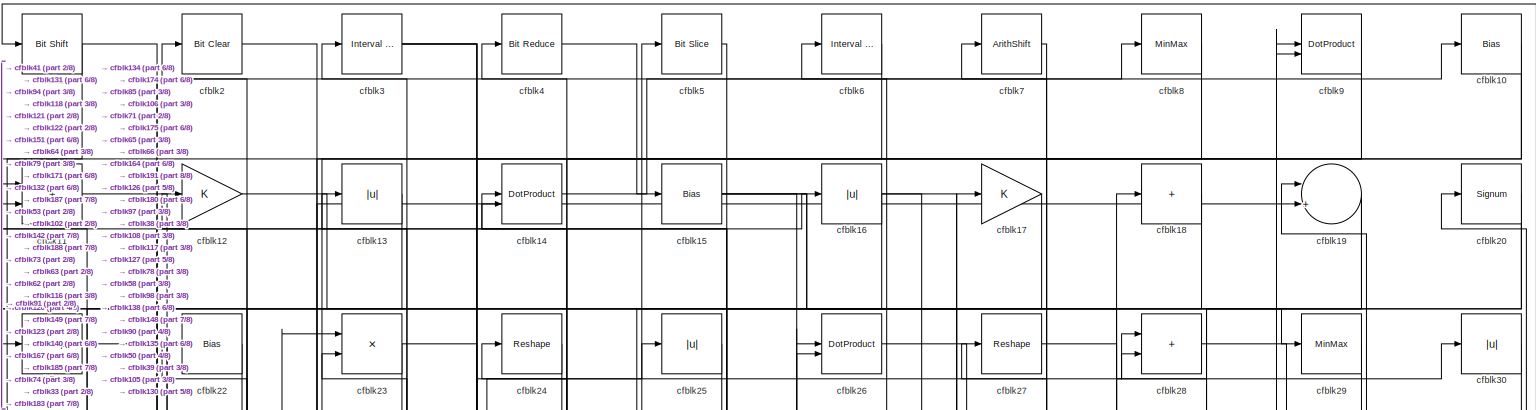
[diagram: root canvas - part 1/8, full width, top band]
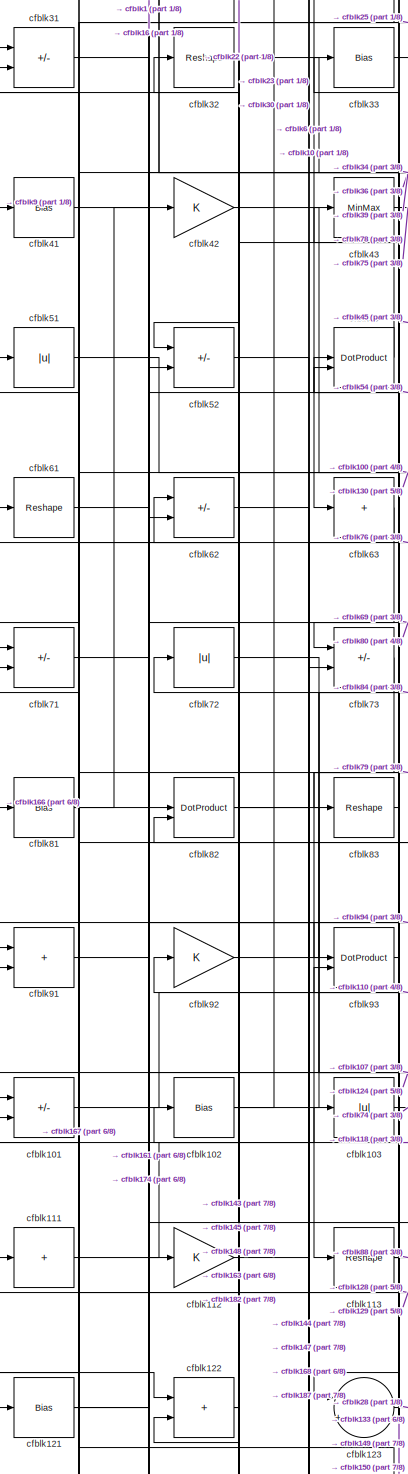
[diagram: root canvas - part 2/8, middle left region]
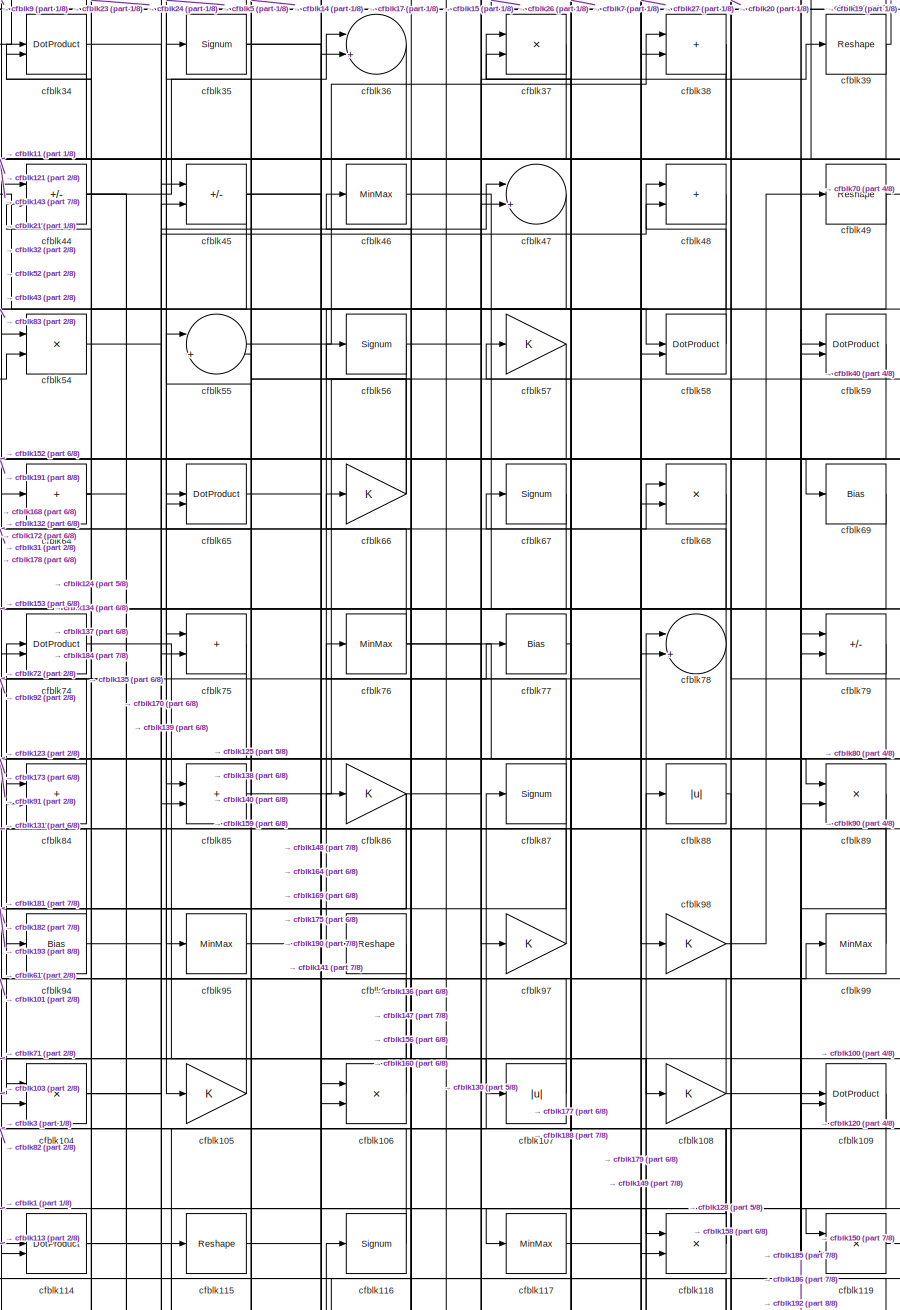
[diagram: root canvas - part 3/8, central region]
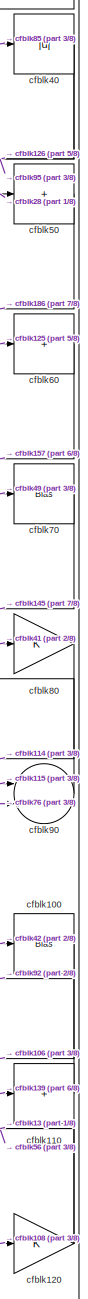
[diagram: root canvas - part 4/8, middle right region]
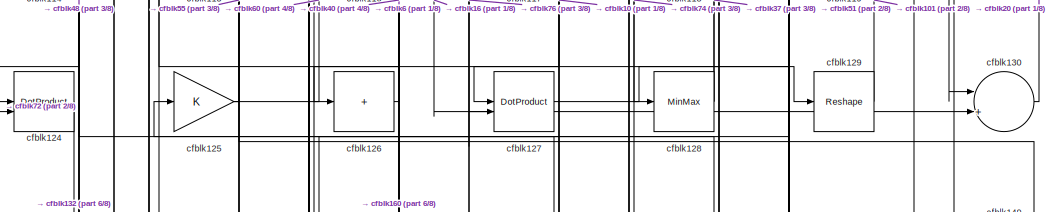
[diagram: root canvas - part 5/8, central region]
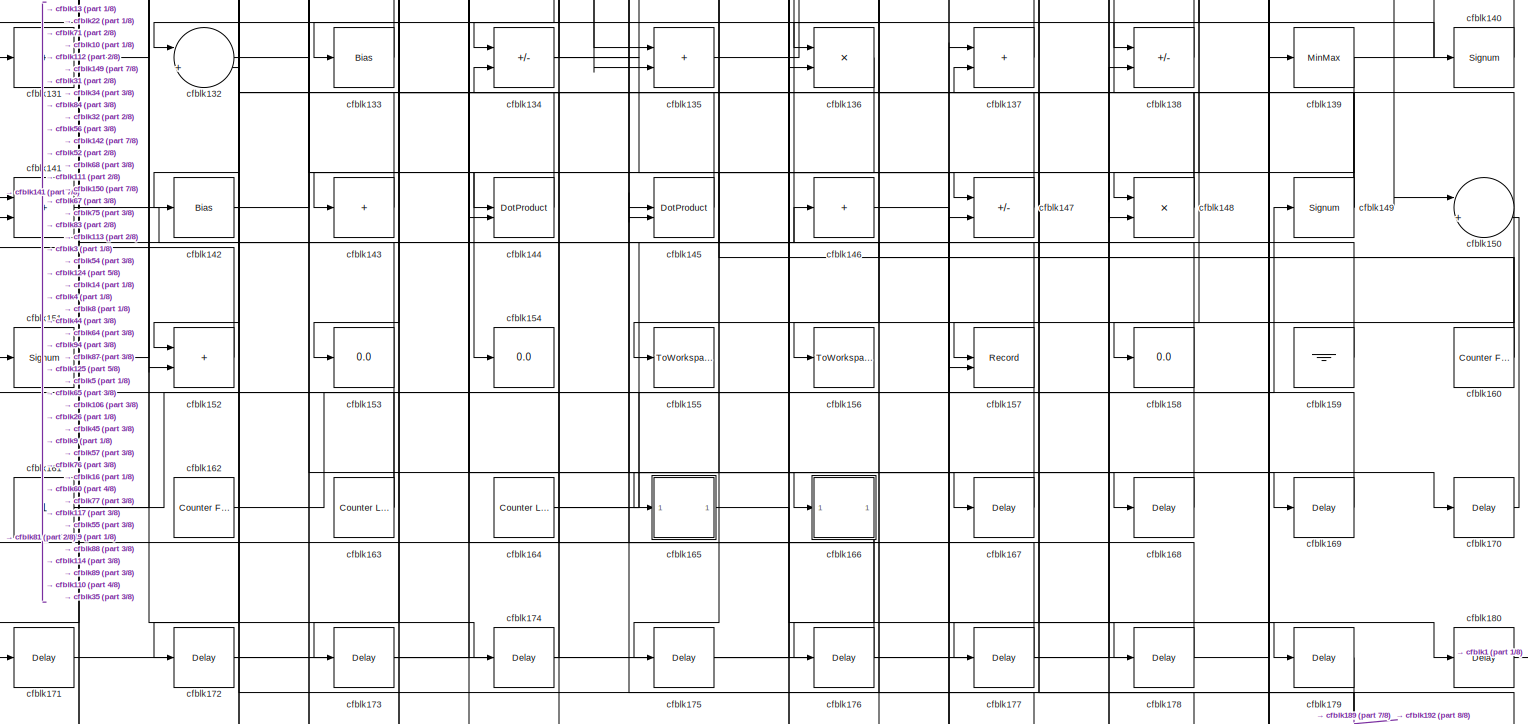
[diagram: root canvas - part 6/8, full width, bottom band]
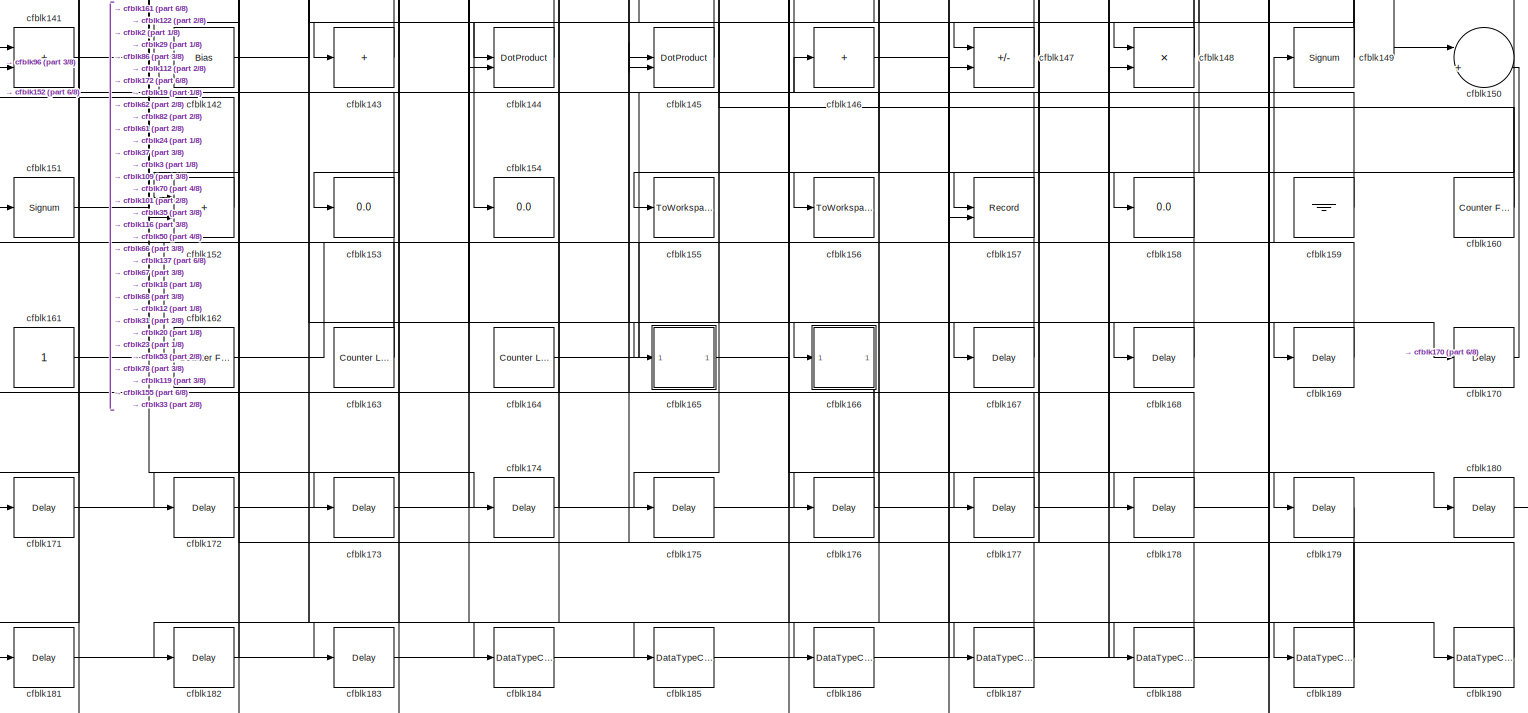
[diagram: root canvas - part 7/8, full width, bottom band]
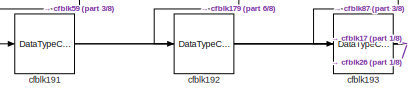
[diagram: root canvas - part 8/8, bottom left region]
MODEL slx_a96918c08062
KIND model
CONFIG AbsTol = auto
CONFIG EnableMultiTasking = off
CONFIG FixedStep = auto
CONFIG MaxStep = auto
CONFIG MinStep = auto
CONFIG RelTol = 1e-3
CONFIG SampleTimeConstraint = Unconstrained
CONFIG SolverName = VariableStepAuto
CONFIG StartTime = 0.0
CONFIG StopTime = 10.0
BLOCK [Reference] cfblk1  REF=hdlsllib/Logic and Bit
Operations/Bit Shift
  SourceBlock = hdlsllib/Logic and Bit\nOperations/Bit Shift
  SourceType = Bit Shift
BLOCK [Bias] cfblk10
  Bias = 0.0
  SaturateOnIntegerOverflow = off
BLOCK [Bias] cfblk100
  Bias = 0.0
  SaturateOnIntegerOverflow = off
BLOCK [Sum] cfblk101
  IconShape = rectangular
  Inputs = +-
BLOCK [Bias] cfblk102
  Bias = 0.0
  SaturateOnIntegerOverflow = off
BLOCK [Abs] cfblk103
  SaturateOnIntegerOverflow = off
BLOCK [Product] cfblk104
  Inputs = */
  RndMeth = Zero
  SaturateOnIntegerOverflow = on
BLOCK [Gain] cfblk105
BLOCK [Product] cfblk106
  Inputs = */
  RndMeth = Zero
  SaturateOnIntegerOverflow = on
BLOCK [Abs] cfblk107
  SaturateOnIntegerOverflow = off
BLOCK [Gain] cfblk108
BLOCK [DotProduct] cfblk109
  OutDataTypeStr = Inherit: Inherit via internal rule
BLOCK [Sum] cfblk11
  IconShape = rectangular
BLOCK [Sum] cfblk110
  IconShape = rectangular
  Inputs = +
BLOCK [Sum] cfblk111
  IconShape = rectangular
  Inputs = +
BLOCK [Gain] cfblk112
BLOCK [Reshape] cfblk113
BLOCK [DotProduct] cfblk114
  OutDataTypeStr = Inherit: Inherit via internal rule
BLOCK [Reshape] cfblk115
BLOCK [Signum] cfblk116
BLOCK [MinMax] cfblk117
BLOCK [Product] cfblk118
  Inputs = */
  RndMeth = Zero
  SaturateOnIntegerOverflow = on
BLOCK [Product] cfblk119
  Inputs = */
  RndMeth = Zero
  SaturateOnIntegerOverflow = on
BLOCK [Gain] cfblk12
BLOCK [Gain] cfblk120
BLOCK [Bias] cfblk121
  Bias = 0.0
  SaturateOnIntegerOverflow = off
BLOCK [Sum] cfblk122
  IconShape = rectangular
BLOCK [Sum] cfblk123
  Inputs = |++
BLOCK [DotProduct] cfblk124
  OutDataTypeStr = Inherit: Inherit via internal rule
BLOCK [Gain] cfblk125
BLOCK [Sum] cfblk126
  IconShape = rectangular
  Inputs = +
BLOCK [DotProduct] cfblk127
  OutDataTypeStr = Inherit: Inherit via internal rule
BLOCK [MinMax] cfblk128
BLOCK [Reshape] cfblk129
BLOCK [Abs] cfblk13
  SaturateOnIntegerOverflow = off
BLOCK [Sum] cfblk130
  Inputs = |++
BLOCK [Sum] cfblk131
  IconShape = rectangular
  Inputs = +
BLOCK [Sum] cfblk132
  Inputs = |++
BLOCK [Bias] cfblk133
  Bias = 0.0
  SaturateOnIntegerOverflow = off
BLOCK [Sum] cfblk134
  IconShape = rectangular
  Inputs = +-
BLOCK [Sum] cfblk135
  IconShape = rectangular
BLOCK [Product] cfblk136
  Inputs = */
  RndMeth = Zero
  SaturateOnIntegerOverflow = on
BLOCK [Sum] cfblk137
  IconShape = rectangular
BLOCK [Sum] cfblk138
  IconShape = rectangular
  Inputs = +-
BLOCK [MinMax] cfblk139
BLOCK [DotProduct] cfblk14
  OutDataTypeStr = Inherit: Inherit via internal rule
BLOCK [Signum] cfblk140
BLOCK [Sum] cfblk141
  IconShape = rectangular
BLOCK [Bias] cfblk142
  Bias = 0.0
  SaturateOnIntegerOverflow = off
BLOCK [Sum] cfblk143
  IconShape = rectangular
  Inputs = +
BLOCK [DotProduct] cfblk144
  OutDataTypeStr = Inherit: Inherit via internal rule
BLOCK [DotProduct] cfblk145
  OutDataTypeStr = Inherit: Inherit via internal rule
BLOCK [Sum] cfblk146
  IconShape = rectangular
  Inputs = +
BLOCK [Sum] cfblk147
  IconShape = rectangular
  Inputs = +-
BLOCK [Product] cfblk148
  Inputs = */
  RndMeth = Zero
  SaturateOnIntegerOverflow = on
BLOCK [Signum] cfblk149
BLOCK [Bias] cfblk15
  Bias = 0.0
  SaturateOnIntegerOverflow = off
BLOCK [Sum] cfblk150
  Inputs = |++
BLOCK [Signum] cfblk151
BLOCK [Sum] cfblk152
  IconShape = rectangular
BLOCK [Display] cfblk153
  Decimation = 1
BLOCK [Display] cfblk154
  Decimation = 1
BLOCK [ToWorkspace] cfblk155
  MaxDataPoints = inf
  SampleTime = -1
  SaveFormat = Timeseries
  VariableName = simout
BLOCK [ToWorkspace] cfblk156
  MaxDataPoints = inf
  SampleTime = -1
  SaveFormat = Timeseries
  VariableName = simout
BLOCK [Record] cfblk157
  CompatibilityTag = XY
  FileSettingsInternal = {"entries":[{"content":{"excelSettings":{"content":{},"type":"Streamout.ExcelSettings"}},"type":"Streamout.FileSettingStorage","uuid":""}],"packageUris":["http:\/\/schema.mathworks.com\/mf0\/streamout_blocks\/R2020a"],"version":"1.0"}
  Layout = [1 1]
  SignalsInternal = {"entries":[{"content":{"signals":[{"content":{"blockPath":[],"dimensions":[1],"domain":"","lineColor":"#a2142f","plots":[1],"port":1,"signalID":5926,"signalName":"XY Graph:1"},"type":"RecordBlkView.Signal","uuid":""},{"content":{"blockPath":[],"dimensions":[1],"domain":"","lineColor":"#139fff","plots":[1],"port":2,"signalID":5929,"signalName":"XY Graph:2"},"type":"RecordBlkView.Signal","uuid":""}...<+146ch>
  VisualizationBindings = {"xyplotplugin":{"info":[{"series":[{"bindingParametersList":[{"parameter":"X-Axis","signalID":5926,"signalName":"XY Graph:1"},{"parameter":"Y-Axis","signalID":5929,"signalName":"XY Graph:2"}],"seriesID":65058}],"subplotID":1}]}}
  st = -1
BLOCK [Display] cfblk158
  Decimation = 1
BLOCK [Ground] cfblk159
BLOCK [Abs] cfblk16
  SaturateOnIntegerOverflow = off
BLOCK [Reference] cfblk160  REF=hdlsllib/Sources/Counter
Free-Running
  SourceBlock = hdlsllib/Sources/Counter\nFree-Running
  SourceType = Counter Free-Running
BLOCK [Constant] cfblk161
  SampleTime = -1
BLOCK [Reference] cfblk162  REF=hdlsllib/Sources/Counter
Free-Running
  SourceBlock = hdlsllib/Sources/Counter\nFree-Running
  SourceType = Counter Free-Running
BLOCK [Reference] cfblk163  REF=hdlsllib/Sources/Counter
Limited
  SourceBlock = hdlsllib/Sources/Counter\nLimited
  SourceType = Counter Limited
BLOCK [Reference] cfblk164  REF=hdlsllib/Sources/Counter
Limited
  SourceBlock = hdlsllib/Sources/Counter\nLimited
  SourceType = Counter Limited
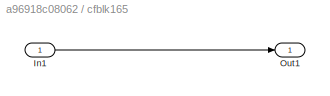
BLOCK [SubSystem] cfblk165
  LibrarySourceBlock = hdlsllib/Ports &\nSubsystems/Subsystem
BLOCK [Inport] cfblk165/In1
BLOCK [Outport] cfblk165/Out1
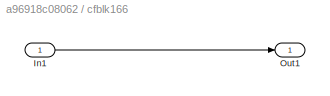
BLOCK [SubSystem] cfblk166
  LibrarySourceBlock = hdlsllib/Ports &\nSubsystems/Subsystem
BLOCK [Inport] cfblk166/In1
BLOCK [Outport] cfblk166/Out1
BLOCK [Delay] cfblk167
  InputPortMap = u0
  SampleTime = 1
BLOCK [Delay] cfblk168
  InputPortMap = u0
  SampleTime = 1
BLOCK [Delay] cfblk169
  InputPortMap = u0
  SampleTime = 1
BLOCK [Gain] cfblk17
BLOCK [Delay] cfblk170
  InputPortMap = u0
  SampleTime = 1
BLOCK [Delay] cfblk171
  InputPortMap = u0
  SampleTime = 1
BLOCK [Delay] cfblk172
  InputPortMap = u0
  SampleTime = 1
BLOCK [Delay] cfblk173
  InputPortMap = u0
  SampleTime = 1
BLOCK [Delay] cfblk174
  InputPortMap = u0
  SampleTime = 1
BLOCK [Delay] cfblk175
  InputPortMap = u0
  SampleTime = 1
BLOCK [Delay] cfblk176
  InputPortMap = u0
  SampleTime = 1
BLOCK [Delay] cfblk177
  InputPortMap = u0
  SampleTime = 1
BLOCK [Delay] cfblk178
  InputPortMap = u0
  SampleTime = 1
BLOCK [Delay] cfblk179
  InputPortMap = u0
  SampleTime = 1
BLOCK [Sum] cfblk18
  IconShape = rectangular
  Inputs = +
BLOCK [Delay] cfblk180
  InputPortMap = u0
  SampleTime = 1
BLOCK [Delay] cfblk181
  InputPortMap = u0
  SampleTime = 1
BLOCK [Delay] cfblk182
  InputPortMap = u0
  SampleTime = 1
BLOCK [Delay] cfblk183
  InputPortMap = u0
  SampleTime = 1
BLOCK [DataTypeConversion] cfblk184
  OutDataTypeStr = uint8
  RndMeth = Floor
  SaturateOnIntegerOverflow = off
BLOCK [DataTypeConversion] cfblk185
  OutDataTypeStr = uint8
  RndMeth = Floor
  SaturateOnIntegerOverflow = off
BLOCK [DataTypeConversion] cfblk186
  OutDataTypeStr = uint8
  RndMeth = Floor
  SaturateOnIntegerOverflow = off
BLOCK [DataTypeConversion] cfblk187
  OutDataTypeStr = boolean
  RndMeth = Floor
  SaturateOnIntegerOverflow = off
BLOCK [DataTypeConversion] cfblk188
  OutDataTypeStr = uint8
  RndMeth = Floor
  SaturateOnIntegerOverflow = off
BLOCK [DataTypeConversion] cfblk189
  RndMeth = Floor
  SaturateOnIntegerOverflow = off
BLOCK [Sum] cfblk19
  Inputs = |++
BLOCK [DataTypeConversion] cfblk190
  OutDataTypeStr = uint8
  RndMeth = Floor
  SaturateOnIntegerOverflow = off
BLOCK [DataTypeConversion] cfblk191
  RndMeth = Floor
  SaturateOnIntegerOverflow = off
BLOCK [DataTypeConversion] cfblk192
  OutDataTypeStr = uint8
  RndMeth = Floor
  SaturateOnIntegerOverflow = off
BLOCK [DataTypeConversion] cfblk193
  OutDataTypeStr = uint8
  RndMeth = Floor
  SaturateOnIntegerOverflow = off
BLOCK [Reference] cfblk2  REF=simulink/Logic and Bit
Operations/Bit Clear
  LibrarySourceBlock = hdlsllib/Logic and Bit\nOperations/Bit Clear
  SourceBlock = simulink/Logic and Bit\nOperations/Bit Clear
  SourceType = Bit Clear
BLOCK [Signum] cfblk20
BLOCK [Reshape] cfblk21
BLOCK [Bias] cfblk22
  Bias = 0.0
  SaturateOnIntegerOverflow = off
BLOCK [Product] cfblk23
  Inputs = */
  RndMeth = Zero
  SaturateOnIntegerOverflow = on
BLOCK [Reshape] cfblk24
BLOCK [Abs] cfblk25
  SaturateOnIntegerOverflow = off
BLOCK [DotProduct] cfblk26
  OutDataTypeStr = Inherit: Inherit via internal rule
BLOCK [Reshape] cfblk27
BLOCK [Sum] cfblk28
  IconShape = rectangular
BLOCK [MinMax] cfblk29
BLOCK [Reference] cfblk3  REF=hdlsllib/Logic and Bit
Operations/Interval Test
  SourceBlock = hdlsllib/Logic and Bit\nOperations/Interval Test
  SourceType = Interval Test
BLOCK [Abs] cfblk30
  SaturateOnIntegerOverflow = off
BLOCK [Sum] cfblk31
  IconShape = rectangular
  Inputs = +-
BLOCK [Reshape] cfblk32
BLOCK [Bias] cfblk33
  Bias = 0.0
  SaturateOnIntegerOverflow = off
BLOCK [DotProduct] cfblk34
  OutDataTypeStr = Inherit: Inherit via internal rule
BLOCK [Signum] cfblk35
BLOCK [Sum] cfblk36
  Inputs = |++
BLOCK [Product] cfblk37
  Inputs = */
  RndMeth = Zero
  SaturateOnIntegerOverflow = on
BLOCK [Sum] cfblk38
  IconShape = rectangular
BLOCK [Reshape] cfblk39
BLOCK [Reference] cfblk4  REF=hdlsllib/Logic and Bit
Operations/Bit Reduce
  SourceBlock = hdlsllib/Logic and Bit\nOperations/Bit Reduce
  SourceType = Bit Reduce
BLOCK [Abs] cfblk40
  SaturateOnIntegerOverflow = off
BLOCK [Bias] cfblk41
  Bias = 0.0
  SaturateOnIntegerOverflow = off
BLOCK [Gain] cfblk42
BLOCK [MinMax] cfblk43
BLOCK [Sum] cfblk44
  IconShape = rectangular
  Inputs = +-
BLOCK [Sum] cfblk45
  IconShape = rectangular
  Inputs = +-
BLOCK [MinMax] cfblk46
BLOCK [Sum] cfblk47
  Inputs = |++
BLOCK [Sum] cfblk48
  IconShape = rectangular
BLOCK [Reshape] cfblk49
BLOCK [Reference] cfblk5  REF=hdlsllib/Logic and Bit
Operations/Bit Slice
  SourceBlock = hdlsllib/Logic and Bit\nOperations/Bit Slice
  SourceType = Bit Slice
BLOCK [Sum] cfblk50
  IconShape = rectangular
  Inputs = +
BLOCK [Abs] cfblk51
  SaturateOnIntegerOverflow = off
BLOCK [Sum] cfblk52
  IconShape = rectangular
  Inputs = +-
BLOCK [DotProduct] cfblk53
  OutDataTypeStr = Inherit: Inherit via internal rule
BLOCK [Product] cfblk54
  Inputs = */
  RndMeth = Zero
  SaturateOnIntegerOverflow = on
BLOCK [Sum] cfblk55
  Inputs = |++
BLOCK [Signum] cfblk56
BLOCK [Gain] cfblk57
BLOCK [DotProduct] cfblk58
  OutDataTypeStr = Inherit: Inherit via internal rule
BLOCK [DotProduct] cfblk59
  OutDataTypeStr = Inherit: Inherit via internal rule
BLOCK [Reference] cfblk6  REF=hdlsllib/Logic and Bit
Operations/Interval Test
  SourceBlock = hdlsllib/Logic and Bit\nOperations/Interval Test
  SourceType = Interval Test
BLOCK [Sum] cfblk60
  IconShape = rectangular
  Inputs = +
BLOCK [Reshape] cfblk61
BLOCK [Sum] cfblk62
  IconShape = rectangular
  Inputs = +-
BLOCK [Sum] cfblk63
  IconShape = rectangular
  Inputs = +
BLOCK [Sum] cfblk64
  IconShape = rectangular
  Inputs = +
BLOCK [DotProduct] cfblk65
  OutDataTypeStr = Inherit: Inherit via internal rule
BLOCK [Gain] cfblk66
BLOCK [Signum] cfblk67
BLOCK [Product] cfblk68
  Inputs = */
  RndMeth = Zero
  SaturateOnIntegerOverflow = on
BLOCK [Bias] cfblk69
  Bias = 0.0
  SaturateOnIntegerOverflow = off
BLOCK [ArithShift] cfblk7
  BitShiftNumber = 8
  InputPortMap = u0
BLOCK [Bias] cfblk70
  Bias = 0.0
  SaturateOnIntegerOverflow = off
BLOCK [Sum] cfblk71
  IconShape = rectangular
  Inputs = +-
BLOCK [Abs] cfblk72
  SaturateOnIntegerOverflow = off
BLOCK [Sum] cfblk73
  IconShape = rectangular
  Inputs = +-
BLOCK [DotProduct] cfblk74
  OutDataTypeStr = Inherit: Inherit via internal rule
BLOCK [Sum] cfblk75
  IconShape = rectangular
BLOCK [MinMax] cfblk76
BLOCK [Bias] cfblk77
  Bias = 0.0
  SaturateOnIntegerOverflow = off
BLOCK [Sum] cfblk78
  Inputs = |++
BLOCK [Sum] cfblk79
  IconShape = rectangular
  Inputs = +-
BLOCK [MinMax] cfblk8
BLOCK [Gain] cfblk80
BLOCK [Bias] cfblk81
  Bias = 0.0
  SaturateOnIntegerOverflow = off
BLOCK [DotProduct] cfblk82
  OutDataTypeStr = Inherit: Inherit via internal rule
BLOCK [Reshape] cfblk83
BLOCK [Sum] cfblk84
  IconShape = rectangular
BLOCK [Sum] cfblk85
  IconShape = rectangular
BLOCK [Gain] cfblk86
BLOCK [Signum] cfblk87
BLOCK [Abs] cfblk88
  SaturateOnIntegerOverflow = off
BLOCK [Product] cfblk89
  Inputs = */
  RndMeth = Zero
  SaturateOnIntegerOverflow = on
BLOCK [DotProduct] cfblk9
  OutDataTypeStr = Inherit: Inherit via internal rule
BLOCK [Sum] cfblk90
  Inputs = |++
BLOCK [Sum] cfblk91
  IconShape = rectangular
BLOCK [Gain] cfblk92
BLOCK [DotProduct] cfblk93
  OutDataTypeStr = Inherit: Inherit via internal rule
BLOCK [Bias] cfblk94
  Bias = 0.0
  SaturateOnIntegerOverflow = off
BLOCK [MinMax] cfblk95
BLOCK [Reshape] cfblk96
BLOCK [Gain] cfblk97
BLOCK [Gain] cfblk98
BLOCK [MinMax] cfblk99
LINE cfblk100:1 -> cfblk106:2
LINE cfblk101:1 -> cfblk36:2
NET cfblk102:1 -> cfblk23:1, cfblk30:1
LINE cfblk103:1 -> cfblk74:1
NET cfblk104:1 -> cfblk48:2, cfblk99:1
LINE cfblk105:1 -> cfblk84:2
LINE cfblk106:1 -> cfblk5:1
LINE cfblk107:1 -> cfblk86:1
NET cfblk108:1 -> cfblk120:1, cfblk7:1
LINE cfblk109:1 -> cfblk184:1
NET cfblk10:1 -> cfblk127:1, cfblk63:1
LINE cfblk110:1 -> cfblk92:1
LINE cfblk111:1 -> cfblk103:1
LINE cfblk112:1 -> cfblk144:1
NET cfblk113:1 -> cfblk166:1, cfblk88:1, cfblk93:2
NET cfblk114:1 -> cfblk139:1, cfblk47:1
LINE cfblk115:1 -> cfblk90:1
LINE cfblk116:1 -> cfblk3:1
LINE cfblk117:1 -> cfblk179:1
NET cfblk118:1 -> cfblk34:2, cfblk37:1, cfblk82:2
LINE cfblk119:1 -> cfblk150:1
LINE cfblk11:1 -> cfblk79:1
NET cfblk120:1 -> cfblk13:1, cfblk56:1
NET cfblk121:1 -> cfblk16:1, cfblk54:2
NET cfblk122:1 -> cfblk102:1, cfblk62:1
LINE cfblk123:1 -> cfblk28:2
LINE cfblk124:1 -> cfblk132:1
NET cfblk125:1 -> cfblk55:2, cfblk60:1
LINE cfblk126:1 -> cfblk6:1
LINE cfblk127:1 -> cfblk129:1
NET cfblk128:1 -> cfblk37:2, cfblk51:1
LINE cfblk129:1 -> cfblk101:1
LINE cfblk12:1 -> cfblk29:1
LINE cfblk130:1 -> cfblk20:1
LINE cfblk131:1 -> cfblk84:1
LINE cfblk132:1 -> cfblk68:1
LINE cfblk133:1 -> cfblk111:1
NET cfblk134:1 -> cfblk157:2, cfblk4:1, cfblk87:1
LINE cfblk135:1 -> cfblk9:2
LINE cfblk136:1 -> cfblk154:1
LINE cfblk137:1 -> cfblk44:2
LINE cfblk138:1 -> cfblk55:1
NET cfblk139:1 -> cfblk110:1, cfblk165:1
LINE cfblk13:1 -> cfblk131:1
LINE cfblk140:1 -> cfblk35:1
LINE cfblk141:1 -> cfblk116:1
NET cfblk142:1 -> cfblk172:1, cfblk19:2
LINE cfblk143:1 -> cfblk61:1
LINE cfblk144:1 -> cfblk53:1
LINE cfblk145:1 -> cfblk101:2
LINE cfblk146:1 -> cfblk189:1
LINE cfblk147:1 -> cfblk66:1
NET cfblk148:1 -> cfblk12:1, cfblk31:1
NET cfblk149:1 -> cfblk23:2, cfblk53:2, cfblk78:1
LINE cfblk14:1 -> cfblk8:1
NET cfblk150:1 -> cfblk155:1, cfblk33:1
LINE cfblk151:1 -> cfblk10:1
LINE cfblk152:1 -> cfblk141:1
LINE cfblk159:1 -> cfblk65:2
NET cfblk15:1 -> cfblk118:2, cfblk58:1, cfblk97:1
NET cfblk160:1 -> cfblk125:1, cfblk76:1
NET cfblk161:1 -> cfblk112:1, cfblk149:1
LINE cfblk162:1 -> cfblk136:2
NET cfblk163:1 -> cfblk151:1, cfblk32:1
NET cfblk164:1 -> cfblk26:1, cfblk89:2
LINE cfblk165/In1:1 -> cfblk165/Out1:1
LINE cfblk165:1 -> cfblk178:1
LINE cfblk166/In1:1 -> cfblk166/Out1:1
NET cfblk166:1 -> cfblk176:1, cfblk81:1
LINE cfblk167:1 -> cfblk71:2
LINE cfblk168:1 -> cfblk54:1
LINE cfblk169:1 -> cfblk137:1
NET cfblk16:1 -> cfblk127:2, cfblk180:1, cfblk91:2
LINE cfblk170:1 -> cfblk150:2
LINE cfblk171:1 -> cfblk9:1
LINE cfblk172:1 -> cfblk44:1
LINE cfblk173:1 -> cfblk138:2
LINE cfblk174:1 -> cfblk14:2
LINE cfblk175:1 -> cfblk106:1
LINE cfblk176:1 -> cfblk134:2
LINE cfblk177:1 -> cfblk45:1
LINE cfblk178:1 -> cfblk114:1
LINE cfblk179:1 -> cfblk192:1
LINE cfblk17:1 -> cfblk65:1
LINE cfblk180:1 -> cfblk1:1
LINE cfblk181:1 -> cfblk147:2
LINE cfblk182:1 -> cfblk122:2
LINE cfblk183:1 -> cfblk18:1
LINE cfblk184:1 -> cfblk68:2
LINE cfblk185:1 -> cfblk109:1
LINE cfblk186:1 -> cfblk109:2
LINE cfblk187:1 -> cfblk2:1
LINE cfblk188:1 -> cfblk67:1
NET cfblk189:1 -> cfblk137:2, cfblk145:1
LINE cfblk18:1 -> cfblk21:1
LINE cfblk190:1 -> cfblk146:1
NET cfblk191:1 -> cfblk17:1, cfblk26:2
LINE cfblk192:1 -> cfblk59:1
LINE cfblk193:1 -> cfblk59:2
NET cfblk19:1 -> cfblk132:2, cfblk138:1
NET cfblk1:1 -> cfblk118:1, cfblk122:1
NET cfblk20:1 -> cfblk148:1, cfblk85:2
LINE cfblk21:1 -> cfblk64:1
LINE cfblk22:1 -> cfblk171:1
NET cfblk23:1 -> cfblk58:2, cfblk62:2
LINE cfblk24:1 -> cfblk183:1
LINE cfblk25:1 -> cfblk71:1
LINE cfblk26:1 -> cfblk38:2
LINE cfblk27:1 -> cfblk98:1
LINE cfblk28:1 -> cfblk50:1
LINE cfblk29:1 -> cfblk142:1
LINE cfblk2:1 -> cfblk188:1
LINE cfblk30:1 -> cfblk105:1
LINE cfblk31:1 -> cfblk174:1
LINE cfblk32:1 -> cfblk78:2
LINE cfblk33:1 -> cfblk25:1
NET cfblk34:1 -> cfblk152:2, cfblk52:2, cfblk89:1
NET cfblk35:1 -> cfblk148:2, cfblk190:1
LINE cfblk36:1 -> cfblk52:1
LINE cfblk37:1 -> cfblk143:1
NET cfblk38:1 -> cfblk104:2, cfblk75:2
NET cfblk39:1 -> cfblk121:1, cfblk19:1
NET cfblk3:1 -> cfblk140:1, cfblk167:1, cfblk185:1
NET cfblk40:1 -> cfblk126:1, cfblk95:1
LINE cfblk41:1 -> cfblk80:1
LINE cfblk42:1 -> cfblk100:1
LINE cfblk43:1 -> cfblk75:1
NET cfblk44:1 -> cfblk115:1, cfblk135:2, cfblk36:1
NET cfblk45:1 -> cfblk169:1, cfblk69:1, cfblk83:1
LINE cfblk46:1 -> cfblk79:2
LINE cfblk47:1 -> cfblk85:1
LINE cfblk48:1 -> cfblk124:1
NET cfblk49:1 -> cfblk70:1, cfblk96:1
LINE cfblk4:1 -> cfblk15:1
LINE cfblk50:1 -> cfblk186:1
LINE cfblk51:1 -> cfblk130:1
LINE cfblk52:1 -> cfblk168:1
LINE cfblk53:1 -> cfblk22:1
LINE cfblk54:1 -> cfblk108:1
LINE cfblk55:1 -> cfblk38:1
NET cfblk56:1 -> cfblk152:1, cfblk47:2
LINE cfblk57:1 -> cfblk156:1
LINE cfblk58:1 -> cfblk48:1
LINE cfblk59:1 -> cfblk191:1
LINE cfblk5:1 -> cfblk175:1
LINE cfblk60:1 -> cfblk157:1
LINE cfblk61:1 -> cfblk94:1
LINE cfblk62:1 -> cfblk147:1
LINE cfblk63:1 -> cfblk73:1
NET cfblk64:1 -> cfblk104:1, cfblk135:1, cfblk24:1
LINE cfblk65:1 -> cfblk119:1
NET cfblk66:1 -> cfblk11:2, cfblk14:1
LINE cfblk67:1 -> cfblk153:1
LINE cfblk68:1 -> cfblk136:1
LINE cfblk69:1 -> cfblk123:2
LINE cfblk6:1 -> cfblk73:2
LINE cfblk70:1 -> cfblk145:2
LINE cfblk71:1 -> cfblk107:1
LINE cfblk72:1 -> cfblk124:2
LINE cfblk73:1 -> cfblk113:1
LINE cfblk74:1 -> cfblk128:1
LINE cfblk75:1 -> cfblk173:1
NET cfblk76:1 -> cfblk130:2, cfblk31:2, cfblk90:2
LINE cfblk77:1 -> cfblk177:1
NET cfblk78:1 -> cfblk123:1, cfblk27:1
LINE cfblk79:1 -> cfblk91:1
LINE cfblk7:1 -> cfblk117:1
LINE cfblk80:1 -> cfblk114:2
NET cfblk81:1 -> cfblk42:1, cfblk93:1
NET cfblk82:1 -> cfblk144:2, cfblk187:1
LINE cfblk83:1 -> cfblk133:1
LINE cfblk84:1 -> cfblk72:1
LINE cfblk85:1 -> cfblk40:1
NET cfblk86:1 -> cfblk181:1, cfblk182:1, cfblk39:1
NET cfblk87:1 -> cfblk193:1, cfblk46:1
LINE cfblk88:1 -> cfblk158:1
LINE cfblk89:1 -> cfblk119:2
LINE cfblk8:1 -> cfblk134:1
LINE cfblk90:1 -> cfblk28:1
LINE cfblk91:1 -> cfblk82:1
LINE cfblk92:1 -> cfblk45:2
LINE cfblk93:1 -> cfblk43:1
NET cfblk94:1 -> cfblk11:1, cfblk170:1
LINE cfblk95:1 -> cfblk77:1
LINE cfblk96:1 -> cfblk141:2
LINE cfblk97:1 -> cfblk34:1
LINE cfblk98:1 -> cfblk49:1
LINE cfblk99:1 -> cfblk57:1
NET cfblk9:1 -> cfblk41:1, cfblk74:2
note: NET lines group one-source signal fan-out (src -> all destinations, sorted); 1:1 wires keep LINE
